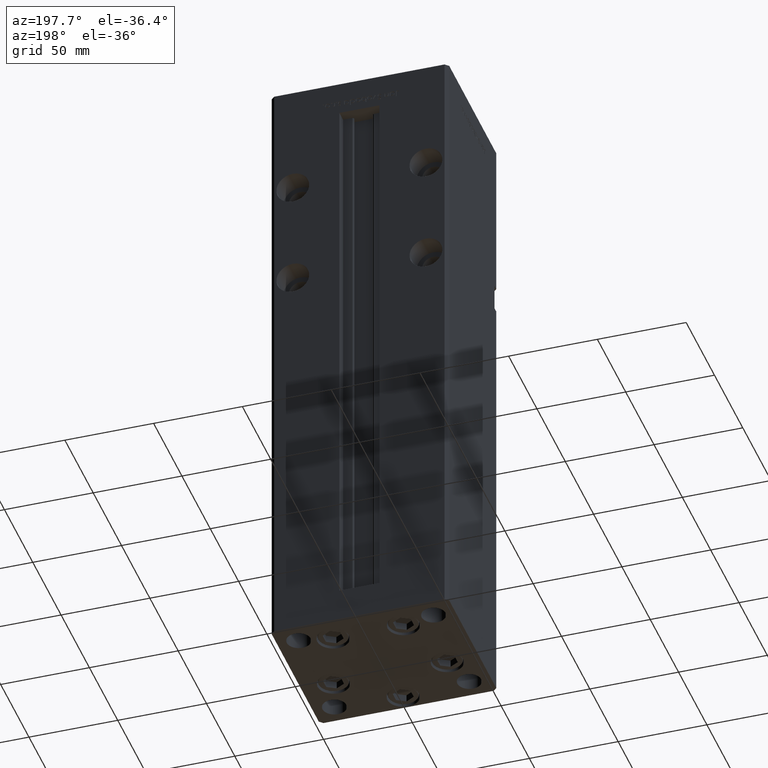
[diagram: clean part render]
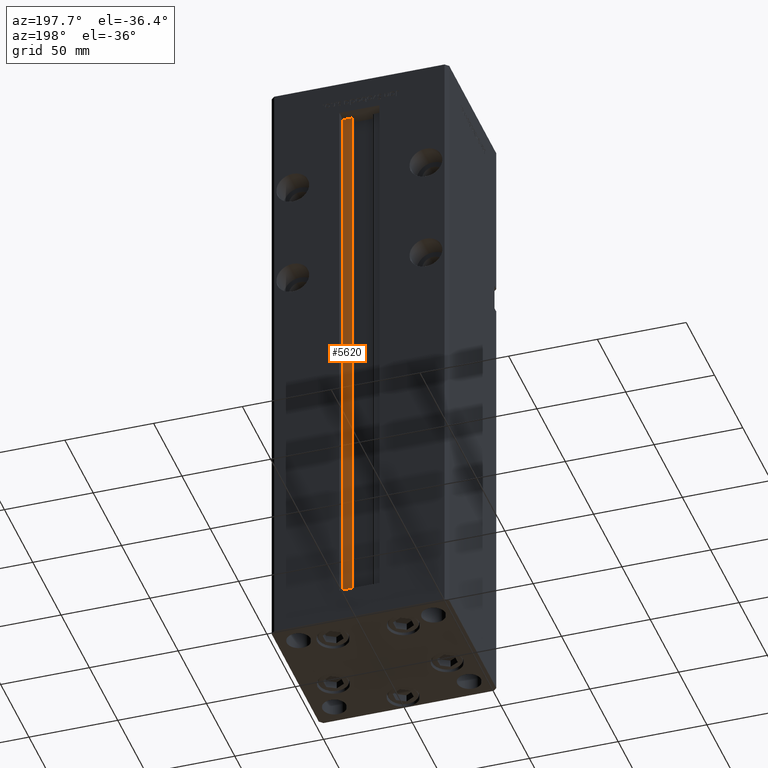
[diagram: same view with one face highlighted and labeled with its STEP entity id]
A machine part, auxiliary view. The second image highlights one B-rep face of the part: STEP entity #5620.
In plain terms, the highlighted planar face has unit normal (0, -1, 0).
Its self-contained STEP definition (entity closure, byte-faithful):
#3438 = VERTEX_POINT ( 'NONE', #27254 ) ;
#3865 = VERTEX_POINT ( 'NONE', #34577 ) ;
#5573 = VECTOR ( 'NONE', #30904, 1000.000000000000000 ) ;
#5620 = ADVANCED_FACE ( 'NONE', ( #35552 ), #52222, .F. ) ;
#6090 = VERTEX_POINT ( 'NONE', #13901 ) ;
#6133 = CARTESIAN_POINT ( 'NONE',  ( 6.183333333333996151, 37.00000000000000000, 0.000000000000000000 ) ) ;
#6303 = EDGE_CURVE ( 'NONE', #49800, #3438, #31111, .T. ) ;
#7319 = DIRECTION ( 'NONE',  ( 0.000000000000000000, -0.000000000000000000, -1.000000000000000000 ) ) ;
#9677 = CARTESIAN_POINT ( 'NONE',  ( 6.183333333333996151, 37.00000000000000000, 0.000000000000000000 ) ) ;
#10688 = DIRECTION ( 'NONE',  ( -0.000000000000000000, -0.000000000000000000, 1.000000000000000000 ) ) ;
#12128 = DIRECTION ( 'NONE',  ( 0.000000000000000000, -1.000000000000000000, 0.000000000000000000 ) ) ;
#13901 = CARTESIAN_POINT ( 'NONE',  ( 6.183333333333996151, 37.00000000000000000, 318.5000000000000000 ) ) ;
#14605 = CARTESIAN_POINT ( 'NONE',  ( 0.000000000000000000, 37.00000000000000000, 318.5000000000000000 ) ) ;
#18146 = AXIS2_PLACEMENT_3D ( 'NONE', #48962, #12128, #7319 ) ;
#18856 = ORIENTED_EDGE ( 'NONE', *, *, #30614, .F. ) ;
#23046 = CARTESIAN_POINT ( 'NONE',  ( 11.24999999999999645, 37.00000000000000000, 0.000000000000000000 ) ) ;
#26067 = LINE ( 'NONE', #9677, #5573 ) ;
#27254 = CARTESIAN_POINT ( 'NONE',  ( 11.24999999999999645, 37.00000000000000000, 318.5000000000000000 ) ) ;
#28219 = ORIENTED_EDGE ( 'NONE', *, *, #42440, .F. ) ;
#28401 = ORIENTED_EDGE ( 'NONE', *, *, #6303, .F. ) ;
#28498 = VECTOR ( 'NONE', #10688, 1000.000000000000000 ) ;
#30614 = EDGE_CURVE ( 'NONE', #3438, #6090, #38535, .T. ) ;
#30904 = DIRECTION ( 'NONE',  ( 1.000000000000000000, 0.000000000000000000, 0.000000000000000000 ) ) ;
#31111 = LINE ( 'NONE', #47519, #28498 ) ;
#34071 = DIRECTION ( 'NONE',  ( -0.000000000000000000, -0.000000000000000000, 1.000000000000000000 ) ) ;
#34504 = EDGE_LOOP ( 'NONE', ( #28401, #28219, #36042, #18856 ) ) ;
#34577 = CARTESIAN_POINT ( 'NONE',  ( 6.183333333333996151, 37.00000000000000000, 0.000000000000000000 ) ) ;
#35552 = FACE_OUTER_BOUND ( 'NONE', #34504, .T. ) ;
#36042 = ORIENTED_EDGE ( 'NONE', *, *, #42867, .T. ) ;
#38270 = DIRECTION ( 'NONE',  ( -1.000000000000000000, 0.000000000000000000, 0.000000000000000000 ) ) ;
#38535 = LINE ( 'NONE', #14605, #41367 ) ;
#39066 = VECTOR ( 'NONE', #34071, 1000.000000000000000 ) ;
#41367 = VECTOR ( 'NONE', #38270, 1000.000000000000000 ) ;
#42440 = EDGE_CURVE ( 'NONE', #3865, #49800, #26067, .T. ) ;
#42867 = EDGE_CURVE ( 'NONE', #3865, #6090, #42945, .T. ) ;
#42945 = LINE ( 'NONE', #6133, #39066 ) ;
#47519 = CARTESIAN_POINT ( 'NONE',  ( 11.24999999999999645, 37.00000000000000000, 0.000000000000000000 ) ) ;
#48962 = CARTESIAN_POINT ( 'NONE',  ( 6.183333333333996151, 37.00000000000000000, 0.000000000000000000 ) ) ;
#49800 = VERTEX_POINT ( 'NONE', #23046 ) ;
#52222 = PLANE ( 'NONE',  #18146 ) ;